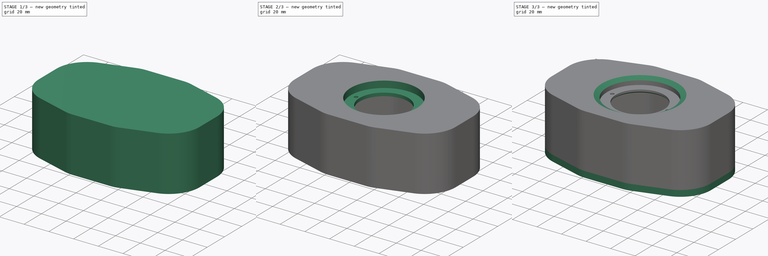
[diagram: build sequence overview — one tinted view per stage of 3, left to right]
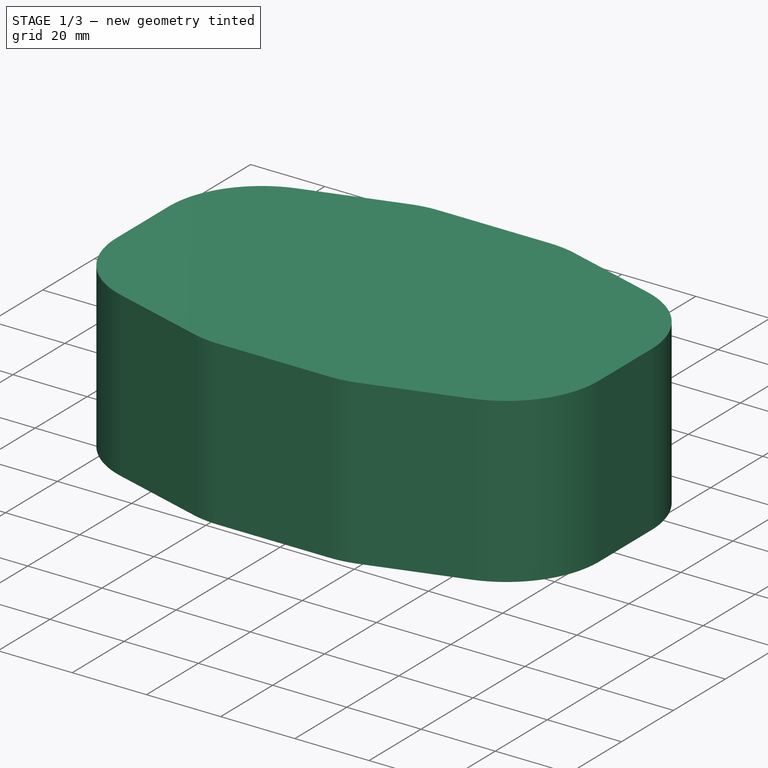
[diagram: stage 1 of 3 — iso view after this stage's code; geometry added in this stage tinted green]
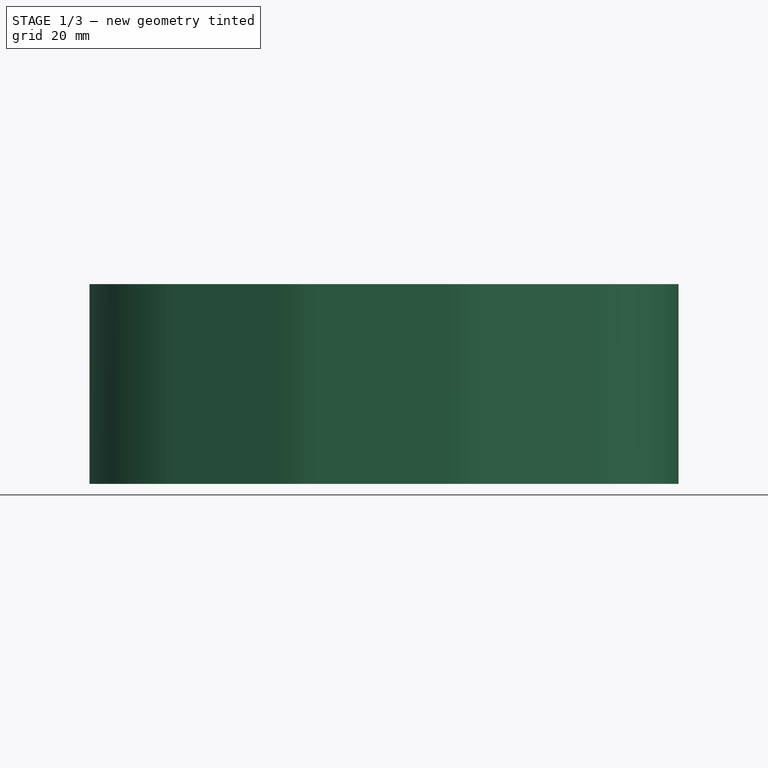
[diagram: stage 1 of 3 — front view after this stage's code; geometry added in this stage tinted green]
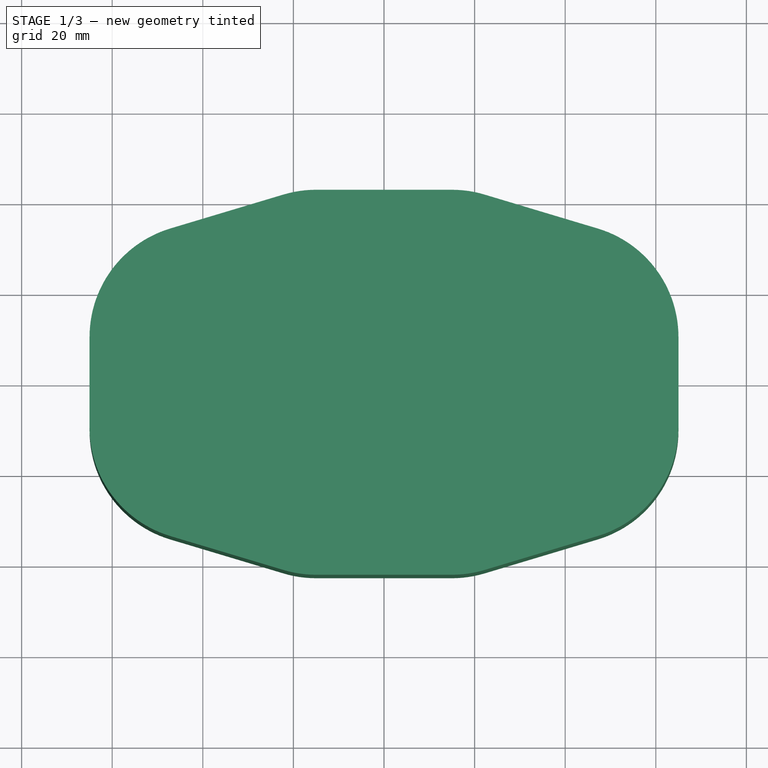
[diagram: stage 1 of 3 — top view after this stage's code; geometry added in this stage tinted green]
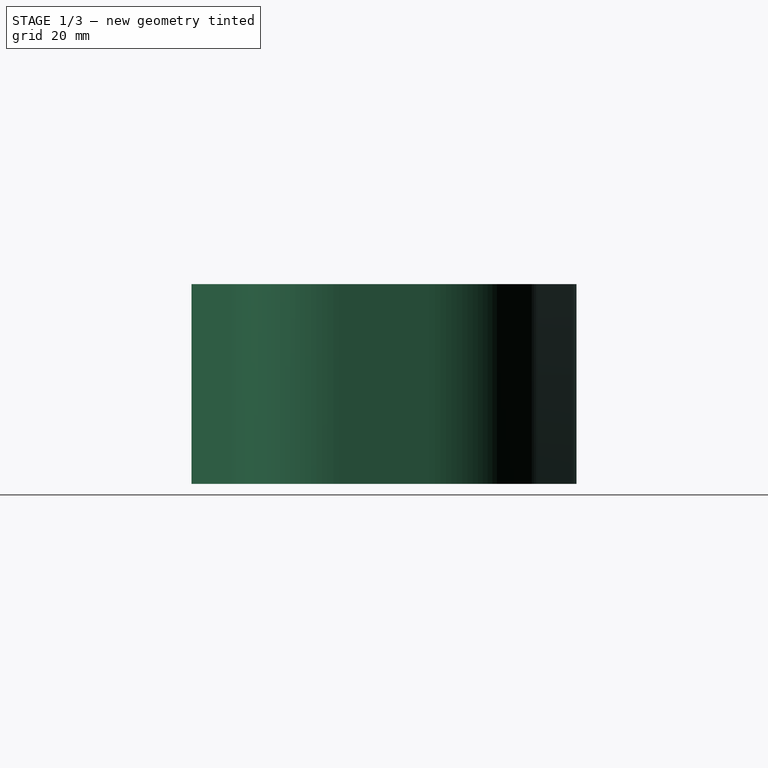
[diagram: stage 1 of 3 — right view after this stage's code; geometry added in this stage tinted green]
FCSTD DOCUMENT  (FreeCAD 1.1R20260325 (Git shallow))
Label: mule v8.0
License: All rights reserved
LicenseURL: http://en.wikipedia.org/wiki/All_rights_reserved
objects: Sketcher::SketchObject×11, PartDesign::Pad×4, App::VarSet×2, App::Point×2, PartDesign::Pocket×2, PartDesign::Body×2, PartDesign::Chamfer×2
note: 48 computed .brp shape members not serialized (recipe doc carries the construction recipe); baked Part::Feature solids carry a one-line shape summary decoded from their .brp

FEATURE [Sketcher::SketchObject] Sketch002  label="base geometry"
  ArcFitTolerance = 1e-06
  ExternalTypes = [0]
  FullyConstrained = true
  MakeInternals = false
  MapMode = 5
  _ExternalGeoVersion = 0
  expr: Constraints[3] = <<v>>.bmr_offset
  expr: Constraints[4] = <<v>>.woofer_offset
  expr: Constraints[5] = <<v>>.woofer_offset
  expr: Constraints[6] = <<v>>.ext_height / 2
  expr: Constraints[7] = <<v>>.ext_width / 2
  sketch-geometry (7):
    g0: GeomPoint [constr] X=-97.5 Y=247.5 Z=0
    g1: GeomPoint [constr] X=97.5 Y=247.5 Z=0
    g2: GeomPoint [constr] X=97.5 Y=-247.5 Z=0
    g3: GeomPoint [constr] X=-97.5 Y=-247.5 Z=0
    g4: GeomPoint [constr] X=0 Y=0 Z=0
    g5: GeomPoint [constr] X=0 Y=125 Z=0
    g6: GeomPoint [constr] X=0 Y=-125 Z=0
  constraints (11):
    c: PointOnObject(g4,g-1)
    c: PointOnObject(g5,g-2)
    c: PointOnObject(g6,g-2)
    c: DistanceX(g4,g-1) = 0
    c: DistanceY(g-1,g5) = 125
    c: DistanceY(g6,g-1) = 125
    c: DistanceY(g-1,g1) = 247.5
    c: DistanceX(g-1,g1) = 97.5
    c: Symmetric(g0,g1,g-2)
    c: Symmetric(g1,g2,g-1)
    c: Symmetric(g3,g2,g-2)
FEATURE [Sketcher::SketchObject] Sketch  label="back panel screw hole geometry"
  ArcFitTolerance = 1e-06
  AttachmentSupport = -> [Sketch002]
  ExternalTypes = [0]
  FullyConstrained = true
  MakeInternals = false
  MapMode = 2
  _ExternalGeoVersion = 0
  expr: Constraints[1] = <<v>>.ext_height / 2 - <<v>>.screw_inset
  expr: Constraints[2] = <<v>>.ext_width / 2 - <<v>>.screw_inset
  expr: Constraints[8] = <<v>>.ext_width / 2 - <<v>>.screw_inset
  expr: Constraints[9] = <<v>>.bmr_enc_base
  sketch-geometry (10):
    g0: GeomPoint [constr] X=-87.5 Y=237.5 Z=0
    g1: GeomPoint [constr] X=87.5 Y=237.5 Z=0
    g2: GeomPoint [constr] X=87.5 Y=-237.5 Z=0
    g3: GeomPoint [constr] X=-87.5 Y=-237.5 Z=0
    g4: GeomPoint [constr] X=-87.5 Y=-67.5 Z=0
    g5: GeomPoint [constr] X=-87.5 Y=67.5 Z=0
    g6: GeomPoint [constr] X=87.5 Y=67.5 Z=0
    g7: GeomPoint [constr] X=87.5 Y=-67.5 Z=0
    g8: GeomPoint [constr] X=62.5 Y=0 Z=0
    g9: GeomPoint [constr] X=-62.5 Y=0 Z=0
  constraints (13):
    c: PointOnObject(g8,g-1)
    c: DistanceY(g-1,g0) = 237.5
    c: DistanceX(g0,g-1) = 87.5
    c: Symmetric(g0,g1,g-2)
    c: Symmetric(g5,g6,g-2)
    c: Symmetric(g4,g7,g-2)
    c: Symmetric(g3,g2,g-2)
    c: Symmetric(g2,g1,g-1)
    c: DistanceX(g5,g-1) = 87.5
    c: DistanceY(g4,g5) = 135
    c: Symmetric(g5,g4,g-1)
    c: DistanceX(g-1,g8) = 62.5
    c: Symmetric(g9,g8,g-2)
FEATURE [Sketcher::SketchObject] Sketch015  label="interior baffle outline"
  ArcFitTolerance = 1e-06
  AttachmentOffset = pos=(0,0,5) rot=(0,0,1;0rad)
  AttachmentSupport = -> [Sketch]
  ExternalTypes = [0]
  FullyConstrained = true
  MakeInternals = false
  MapMode = 2
  Placement = pos=(0,0,5) rot=(0,0,1;0rad)
  _ExternalGeoVersion = 0
  expr: .AttachmentOffset.Base.z = <<v>>.ext_wall
  sketch-geometry (40):
    g0: LineSegment StartX=-45.747 StartY=29.1565 StartZ=0 EndX=-20.747 EndY=36.6565 EndZ=0
    g1: LineSegment StartX=-15 StartY=37.5 StartZ=0 EndX=15 EndY=37.5 EndZ=0
    g2: LineSegment StartX=20.747 StartY=36.6565 StartZ=0 EndX=45.747 EndY=29.1565 EndZ=0
    g3: LineSegment StartX=60 StartY=10 StartZ=0 EndX=60 EndY=-10 EndZ=0
    g4: LineSegment StartX=45.747 StartY=-29.1565 StartZ=0 EndX=20.747 EndY=-36.6565 EndZ=0
    g5: LineSegment StartX=15 StartY=-37.5 StartZ=0 EndX=-15 EndY=-37.5 EndZ=0
    g6: LineSegment StartX=-20.747 StartY=-36.6565 StartZ=0 EndX=-45.747 EndY=-29.1565 EndZ=0
    g7: LineSegment StartX=-60 StartY=-10 StartZ=0 EndX=-60 EndY=10 EndZ=0
    g8: ArcOfCircle CenterX=-15 CenterY=17.5 CenterZ=0 NormalX=0 NormalY=0 NormalZ=1 AngleXU=0 Radius=20 StartAngle=1.5708 EndAngle=1.86225
    g9: GeomPoint [constr] X=-17.9354 Y=37.5 Z=0
    g10: ArcOfCircle CenterX=15 CenterY=17.5 CenterZ=0 NormalX=0 NormalY=0 NormalZ=1 AngleXU=0 Radius=20 StartAngle=1.27934 EndAngle=1.5708
    g11: GeomPoint [constr] X=17.9354 Y=37.5 Z=0
    g12: ArcOfCircle CenterX=40 CenterY=10 CenterZ=0 NormalX=0 NormalY=0 NormalZ=1 AngleXU=0 Radius=20 StartAngle=0 EndAngle=1.27934
    g13: GeomPoint [constr] X=60 Y=24.8806 Z=0
    g14: ArcOfCircle CenterX=40 CenterY=-10 CenterZ=0 NormalX=0 NormalY=0 NormalZ=1 AngleXU=0 Radius=20 StartAngle=5.00385 EndAngle=6.28319
    g15: GeomPoint [constr] X=60 Y=-24.8806 Z=0
    g16: ArcOfCircle CenterX=15 CenterY=-17.5 CenterZ=0 NormalX=0 NormalY=0 NormalZ=1 AngleXU=0 Radius=20 StartAngle=4.71239 EndAngle=5.00385
    g17: GeomPoint [constr] X=17.9354 Y=-37.5 Z=0
    g18: ArcOfCircle CenterX=-15 CenterY=-17.5 CenterZ=0 NormalX=0 NormalY=0 NormalZ=1 AngleXU=0 Radius=20 StartAngle=4.42093 EndAngle=4.71239
    g19: GeomPoint [constr] X=-17.9354 Y=-37.5 Z=0
    g20: ArcOfCircle CenterX=-40 CenterY=-10 CenterZ=0 NormalX=0 NormalY=0 NormalZ=1 AngleXU=0 Radius=20 StartAngle=3.14159 EndAngle=4.42093
    g21: GeomPoint [constr] X=-60 Y=-24.8806 Z=0
    g22: ArcOfCircle CenterX=-40 CenterY=10 CenterZ=0 NormalX=0 NormalY=0 NormalZ=1 AngleXU=0 Radius=20 StartAngle=1.86225 EndAngle=3.14159
    g23: GeomPoint [constr] X=-60 Y=24.8806 Z=0
    g24: ArcOfCircle CenterX=-40 CenterY=10 CenterZ=0 NormalX=0 NormalY=0 NormalZ=1 AngleXU=0 Radius=25 StartAngle=1.86225 EndAngle=3.14159
    g25: LineSegment StartX=-65 StartY=-10 StartZ=0 EndX=-65 EndY=10 EndZ=0
    g26: ArcOfCircle CenterX=-40 CenterY=-10 CenterZ=0 NormalX=0 NormalY=0 NormalZ=1 AngleXU=0 Radius=25 StartAngle=3.14159 EndAngle=4.42093
    g27: LineSegment StartX=-22.1837 StartY=-41.4457 StartZ=0 EndX=-47.1837 EndY=-33.9457 EndZ=0
    g28: ArcOfCircle CenterX=-15 CenterY=-17.5 CenterZ=0 NormalX=0 NormalY=0 NormalZ=1 AngleXU=0 Radius=25 StartAngle=4.42093 EndAngle=4.71239
    g29: LineSegment StartX=15 StartY=-42.5 StartZ=0 EndX=-15 EndY=-42.5 EndZ=0
    g30: ArcOfCircle CenterX=15 CenterY=-17.5 CenterZ=0 NormalX=0 NormalY=0 NormalZ=1 AngleXU=0 Radius=25 StartAngle=4.71239 EndAngle=5.00385
    g31: LineSegment StartX=47.1837 StartY=-33.9457 StartZ=0 EndX=22.1837 EndY=-41.4457 EndZ=0
    g32: ArcOfCircle CenterX=40 CenterY=-10 CenterZ=0 NormalX=0 NormalY=0 NormalZ=1 AngleXU=0 Radius=25 StartAngle=5.00385 EndAngle=6.28319
    g33: LineSegment StartX=65 StartY=10 StartZ=0 EndX=65 EndY=-10 EndZ=0
    g34: ArcOfCircle CenterX=40 CenterY=10 CenterZ=0 NormalX=0 NormalY=0 NormalZ=1 AngleXU=0 Radius=25 StartAngle=0 EndAngle=1.27934
    g35: LineSegment StartX=22.1837 StartY=41.4457 StartZ=0 EndX=47.1837 EndY=33.9457 EndZ=0
    g36: ArcOfCircle CenterX=15 CenterY=17.5 CenterZ=0 NormalX=0 NormalY=0 NormalZ=1 AngleXU=0 Radius=25 StartAngle=1.27934 EndAngle=1.5708
    g37: LineSegment StartX=-15 StartY=42.5 StartZ=0 EndX=15 EndY=42.5 EndZ=0
    g38: ArcOfCircle CenterX=-15 CenterY=17.5 CenterZ=0 NormalX=0 NormalY=0 NormalZ=1 AngleXU=0 Radius=25 StartAngle=1.5708 EndAngle=1.86225
    g39: LineSegment StartX=-47.1837 StartY=33.9457 StartZ=0 EndX=-22.1837 EndY=41.4457 EndZ=0
  constraints (92):
    c: Horizontal(g1)
    c: Vertical(g7)
    c: Parallel(g2,g6)
    c: Parallel(g4,g0)
    c: Symmetric(g11,g17,g-1)
    c: Symmetric(g9,g19,g-1)
    c: Symmetric(g15,g13,g-1)
    c: Symmetric(g23,g13,g-2)
    c: PointOnObject(g9,g0)
    c: PointOnObject(g9,g1)
    c: Tangent(g0,g8) = 1.5708
    c: Tangent(g1,g8) = 1.5708
    c: PointOnObject(g11,g1)
    c: PointOnObject(g11,g2)
    c: Tangent(g1,g10) = 1.5708
    c: Tangent(g2,g10) = 1.5708
    c: PointOnObject(g13,g2)
    c: PointOnObject(g13,g3)
    c: Tangent(g2,g12) = 1.5708
    c: Tangent(g3,g12) = 1.5708
    c: PointOnObject(g15,g3)
    c: PointOnObject(g15,g4)
    c: Tangent(g3,g14) = 1.5708
    c: Tangent(g4,g14) = 1.5708
    c: PointOnObject(g17,g4)
    c: PointOnObject(g17,g5)
    c: Tangent(g4,g16) = 1.5708
    c: Tangent(g5,g16) = 1.5708
    c: PointOnObject(g19,g5)
    c: PointOnObject(g19,g6)
    c: Tangent(g5,g18) = 1.5708
    c: Tangent(g6,g18) = 1.5708
    c: PointOnObject(g21,g6)
    c: PointOnObject(g21,g7)
    c: Tangent(g6,g20) = 1.5708
    c: Tangent(g7,g20) = 1.5708
    c: PointOnObject(g23,g0)
    c: PointOnObject(g23,g7)
    c: Tangent(g0,g22) = 1.5708
    c: Tangent(g7,g22) = 1.5708
    c: Radius(g8) = 20
    c: Equal(g8,g22)
    c: Equal(g20,g22)
    c: Equal(g18,g12)
    c: Equal(g12,g14)
    c: Equal(g8,g10)
    c: Equal(g12,g10)
    c: Tangent(g24,g25) = 1.5708
    c: Tangent(g24,g39) = 1.5708
    c: Tangent(g25,g26) = 1.5708
    c: Tangent(g26,g27) = 1.5708
    c: Tangent(g27,g28) = 1.5708
    c: Tangent(g28,g29) = 1.5708
    c: Tangent(g29,g30) = 1.5708
    c: Tangent(g30,g31) = 1.5708
    c: Tangent(g31,g32) = 1.5708
    c: Tangent(g32,g33) = 1.5708
    c: Tangent(g33,g34) = 1.5708
    c: Tangent(g34,g35) = 1.5708
    c: Tangent(g35,g36) = 1.5708
    c: Tangent(g36,g37) = 1.5708
    c: Tangent(g37,g38) = 1.5708
    c: Tangent(g38,g39) = 1.5708
    c: Distance(g7,g3) = 120
    c: Distance(g5,g1) = 75
    c: Parallel(g37,g1)
    c: Parallel(g5,g29)
    c: Parallel(g25,g7)
    c: Parallel(g3,g33)
    c: Radius(g38) = 25
    c: Equal(g38,g24)
    c: Equal(g24,g26)
    c: Equal(g26,g28)
    c: Equal(g28,g30)
    c: Equal(g30,g32)
    c: Equal(g32,g34)
    c: Equal(g34,g36)
    c: Equal(g14,g16)
    c: Distance(g1,g37) = 5
    c: Distance(g29,g5) = 5
    c: Distance(g7,g25) = 5
    c: Distance(g33,g3) = 5
    c: Parallel(g27,g6)
    c: Parallel(g0,g39)
    c: Parallel(g35,g2)
    c: Parallel(g31,g4)
    c: Distance(g2,g35) = 5
    c: Distance(g31,g4) = 5
    c: Distance(g39,g0) = 5
    c: Distance(g6,g27) = 5
    c: DistanceY(g7,g7) = 20
    c: DistanceX(g1,g1) = 30
FEATURE [App::VarSet] VarSet001  label="v"
  backplate_height = 489.8
  backplate_rebate = 5.9
  backplate_thickness = 5
  backplate_width = 189.8
  bmr_chamfer_depth = 1.5
  bmr_chamfer_width = 6
  bmr_enc_base = 135
  bmr_enc_offset = 35
  bmr_enc_top = 50
  bmr_hole_dia = 39.5
  bmr_offset = 0
  bmr_plate_thickness = 3
  bmr_rebate_depth = 5.4
  bmr_rebate_dia = 54
  bmr_support_dia = 70
  bmr_support_thickness = 3
  ext_depth = 50
  ext_height = 495
  ext_roundover = 10
  ext_wall = 5
  ext_width = 195
  gasket_thickness = 0.9
  int_depth = 39.1
  rim_width = 2.5
  screw_inset = 10
  screw_post_diameter = 10
  woofer_chamfer_depth = 1
  woofer_chamfer_width = 8
  woofer_cutout_dia = 130
  woofer_offset = 125
  woofer_plate_thickness = 5.3
  woofer_rebate_depth = 7.2
  woofer_rebate_dia = 152.5
  woofer_support_dia = 165
  woofer_support_thickness = 6
  expr: backplate_height = ext_height - rim_width * 2 - 0.2 mm
  expr: backplate_rebate = ext_wall + gasket_thickness
  expr: backplate_width = ext_width - rim_width * 2 - 0.2 mm
  expr: bmr_rebate_depth = bmr_plate_thickness + bmr_chamfer_depth + gasket_thickness
  expr: int_depth = ext_depth - ext_wall - backplate_rebate
  expr: woofer_rebate_depth = woofer_plate_thickness + gasket_thickness + woofer_chamfer_depth
FEATURE [Sketcher::SketchObject] Sketch016  label="interior baffle outline001"
  ArcFitTolerance = 1e-06
  AttachmentSupport = -> [Sketch]
  ExternalTypes = [0]
  FullyConstrained = false
  MakeInternals = false
  MapMode = 2
  _ExternalGeoVersion = 0
  sketch-geometry (20):
    g0: GeomPoint [constr] X=60 Y=24.8806 Z=0
    g1: GeomPoint [constr] X=60 Y=-24.8806 Z=0
    g2: GeomPoint [constr] X=-60 Y=-24.8806 Z=0
    g3: GeomPoint [constr] X=-60 Y=24.8806 Z=0
    g4: ArcOfCircle CenterX=-40 CenterY=10 CenterZ=0 NormalX=0 NormalY=0 NormalZ=1 AngleXU=0 Radius=25 StartAngle=1.86225 EndAngle=3.14159
    g5: LineSegment StartX=-65 StartY=-10 StartZ=0 EndX=-65 EndY=10 EndZ=0
    g6: ArcOfCircle CenterX=-40 CenterY=-10 CenterZ=0 NormalX=0 NormalY=0 NormalZ=1 AngleXU=0 Radius=25 StartAngle=3.14159 EndAngle=4.42093
    g7: LineSegment StartX=-22.1837 StartY=-41.4457 StartZ=0 EndX=-47.1837 EndY=-33.9457 EndZ=0
    g8: ArcOfCircle CenterX=-15 CenterY=-17.5 CenterZ=0 NormalX=0 NormalY=0 NormalZ=1 AngleXU=0 Radius=25 StartAngle=4.42093 EndAngle=4.71239
    g9: LineSegment StartX=15 StartY=-42.5 StartZ=0 EndX=-15 EndY=-42.5 EndZ=0
    g10: ArcOfCircle CenterX=15 CenterY=-17.5 CenterZ=0 NormalX=0 NormalY=0 NormalZ=1 AngleXU=0 Radius=25 StartAngle=4.71239 EndAngle=5.00385
    g11: LineSegment StartX=47.1837 StartY=-33.9457 StartZ=0 EndX=22.1837 EndY=-41.4457 EndZ=0
    g12: ArcOfCircle CenterX=40 CenterY=-10 CenterZ=0 NormalX=0 NormalY=0 NormalZ=1 AngleXU=0 Radius=25 StartAngle=5.00385 EndAngle=6.28319
    g13: LineSegment StartX=65 StartY=10 StartZ=0 EndX=65 EndY=-10 EndZ=0
    g14: ArcOfCircle CenterX=40 CenterY=10 CenterZ=0 NormalX=0 NormalY=0 NormalZ=1 AngleXU=0 Radius=25 StartAngle=0 EndAngle=1.27934
    g15: LineSegment StartX=22.1837 StartY=41.4457 StartZ=0 EndX=47.1837 EndY=33.9457 EndZ=0
    g16: ArcOfCircle CenterX=15 CenterY=17.5 CenterZ=0 NormalX=0 NormalY=0 NormalZ=1 AngleXU=0 Radius=25 StartAngle=1.27934 EndAngle=1.5708
    g17: LineSegment StartX=-15 StartY=42.5 StartZ=0 EndX=15 EndY=42.5 EndZ=0
    g18: ArcOfCircle CenterX=-15 CenterY=17.5 CenterZ=0 NormalX=0 NormalY=0 NormalZ=1 AngleXU=0 Radius=25 StartAngle=1.5708 EndAngle=1.86225
    g19: LineSegment StartX=-47.1837 StartY=33.9457 StartZ=0 EndX=-22.1837 EndY=41.4457 EndZ=0
  constraints (26):
    c: Symmetric(g1,g0,g-1)
    c: Symmetric(g3,g0,g-2)
    c: Tangent(g4,g5) = 1.5708
    c: Tangent(g4,g19) = 1.5708
    c: Tangent(g5,g6) = 1.5708
    c: Tangent(g6,g7) = 1.5708
    c: Tangent(g7,g8) = 1.5708
    c: Tangent(g8,g9) = 1.5708
    c: Tangent(g9,g10) = 1.5708
    c: Tangent(g10,g11) = 1.5708
    c: Tangent(g11,g12) = 1.5708
    c: Tangent(g12,g13) = 1.5708
    c: Tangent(g13,g14) = 1.5708
    c: Tangent(g14,g15) = 1.5708
    c: Tangent(g15,g16) = 1.5708
    c: Tangent(g16,g17) = 1.5708
    c: Tangent(g17,g18) = 1.5708
    c: Tangent(g18,g19) = 1.5708
    c: Radius(g18) = 25
    c: Equal(g18,g4)
    c: Equal(g4,g6)
    c: Equal(g6,g8)
    c: Equal(g8,g10)
    c: Equal(g10,g12)
    c: Equal(g12,g14)
    c: Equal(g14,g16)
FEATURE [App::Point] Origin001
  Role = Origin
FEATURE [Sketcher::SketchObject] Sketch017  label="interior baffle outline002"
  ArcFitTolerance = 1e-06
  AttachmentOffset = pos=(0,0,44.1) rot=(0,0,1;0rad)
  AttachmentSupport = -> [Sketch]
  ExternalTypes = [0]
  FullyConstrained = false
  MakeInternals = false
  MapMode = 2
  Placement = pos=(0,0,44.1) rot=(0,0,1;0rad)
  _ExternalGeoVersion = 0
  expr: .AttachmentOffset.Base.z = <<v>>.ext_wall + <<v>>.int_depth
  sketch-geometry (20):
    g0: GeomPoint [constr] X=60 Y=24.8806 Z=0
    g1: GeomPoint [constr] X=60 Y=-24.8806 Z=0
    g2: GeomPoint [constr] X=-60 Y=-24.8806 Z=0
    g3: GeomPoint [constr] X=-60 Y=24.8806 Z=0
    g4: ArcOfCircle CenterX=-40 CenterY=10 CenterZ=0 NormalX=0 NormalY=0 NormalZ=1 AngleXU=0 Radius=25 StartAngle=1.86225 EndAngle=3.14159
    g5: LineSegment StartX=-65 StartY=-10 StartZ=0 EndX=-65 EndY=10 EndZ=0
    g6: ArcOfCircle CenterX=-40 CenterY=-10 CenterZ=0 NormalX=0 NormalY=0 NormalZ=1 AngleXU=0 Radius=25 StartAngle=3.14159 EndAngle=4.42093
    g7: LineSegment StartX=-22.1837 StartY=-41.4457 StartZ=0 EndX=-47.1837 EndY=-33.9457 EndZ=0
    g8: ArcOfCircle CenterX=-15 CenterY=-17.5 CenterZ=0 NormalX=0 NormalY=0 NormalZ=1 AngleXU=0 Radius=25 StartAngle=4.42093 EndAngle=4.71239
    g9: LineSegment StartX=15 StartY=-42.5 StartZ=0 EndX=-15 EndY=-42.5 EndZ=0
    g10: ArcOfCircle CenterX=15 CenterY=-17.5 CenterZ=0 NormalX=0 NormalY=0 NormalZ=1 AngleXU=0 Radius=25 StartAngle=4.71239 EndAngle=5.00385
    g11: LineSegment StartX=47.1837 StartY=-33.9457 StartZ=0 EndX=22.1837 EndY=-41.4457 EndZ=0
    g12: ArcOfCircle CenterX=40 CenterY=-10 CenterZ=0 NormalX=0 NormalY=0 NormalZ=1 AngleXU=0 Radius=25 StartAngle=5.00385 EndAngle=6.28319
    g13: LineSegment StartX=65 StartY=10 StartZ=0 EndX=65 EndY=-10 EndZ=0
    g14: ArcOfCircle CenterX=40 CenterY=10 CenterZ=0 NormalX=0 NormalY=0 NormalZ=1 AngleXU=0 Radius=25 StartAngle=0 EndAngle=1.27934
    g15: LineSegment StartX=22.1837 StartY=41.4457 StartZ=0 EndX=47.1837 EndY=33.9457 EndZ=0
    g16: ArcOfCircle CenterX=15 CenterY=17.5 CenterZ=0 NormalX=0 NormalY=0 NormalZ=1 AngleXU=0 Radius=25 StartAngle=1.27934 EndAngle=1.5708
    g17: LineSegment StartX=-15 StartY=42.5 StartZ=0 EndX=15 EndY=42.5 EndZ=0
    g18: ArcOfCircle CenterX=-15 CenterY=17.5 CenterZ=0 NormalX=0 NormalY=0 NormalZ=1 AngleXU=0 Radius=25 StartAngle=1.5708 EndAngle=1.86225
    g19: LineSegment StartX=-47.1837 StartY=33.9457 StartZ=0 EndX=-22.1837 EndY=41.4457 EndZ=0
  constraints (26):
    c: Symmetric(g1,g0,g-1)
    c: Symmetric(g3,g0,g-2)
    c: Tangent(g4,g5) = 1.5708
    c: Tangent(g4,g19) = 1.5708
    c: Tangent(g5,g6) = 1.5708
    c: Tangent(g6,g7) = 1.5708
    c: Tangent(g7,g8) = 1.5708
    c: Tangent(g8,g9) = 1.5708
    c: Tangent(g9,g10) = 1.5708
    c: Tangent(g10,g11) = 1.5708
    c: Tangent(g11,g12) = 1.5708
    c: Tangent(g12,g13) = 1.5708
    c: Tangent(g13,g14) = 1.5708
    c: Tangent(g14,g15) = 1.5708
    c: Tangent(g15,g16) = 1.5708
    c: Tangent(g16,g17) = 1.5708
    c: Tangent(g17,g18) = 1.5708
    c: Tangent(g18,g19) = 1.5708
    c: Radius(g18) = 25
    c: Equal(g18,g4)
    c: Equal(g4,g6)
    c: Equal(g6,g8)
    c: Equal(g8,g10)
    c: Equal(g10,g12)
    c: Equal(g12,g14)
    c: Equal(g14,g16)
FEATURE [PartDesign::Pad] Pad002  label="face"
  Direction = (0,0,1)
  Length = 5
  Length2 = 10
  Profile = -> Sketch017
  ReferenceAxis = -> Sketch017 [N_Axis]
  SideType = 0
  Suppressed = false
  Type = 0
  Type2 = 0
  expr: Length = <<v>>.ext_wall
FEATURE [Sketcher::SketchObject] Sketch018
  ArcFitTolerance = 1e-06
  AttachmentSupport = -> [Pad002]
  ExternalTypes = [0]
  FullyConstrained = true
  MakeInternals = false
  MapMode = 5
  Placement = pos=(0,0,49.1) rot=(0,0,1;0rad)
  _ExternalGeoVersion = 1
  expr: Constraints[1] = <<v>>.bmr_rebate_dia
  sketch-geometry (1):
    g0: Circle CenterX=0 CenterY=0 CenterZ=0 NormalX=0 NormalY=0 NormalZ=1 AngleXU=0 Radius=27
  constraints (2):
    c: Coincident(g0,g-1)
    c: Diameter(g0) = 54
FEATURE [Sketcher::SketchObject] Sketch019
  ArcFitTolerance = 1e-06
  AttachmentSupport = -> [Pad002]
  ExternalTypes = [0]
  FullyConstrained = true
  MakeInternals = false
  MapMode = 5
  Placement = pos=(0,0,44.1) rot=(1,0,0;3.14159rad)
  _ExternalGeoVersion = 1
  expr: Constraints[1] = <<v>>.bmr_support_dia
  sketch-geometry (1):
    g0: Circle CenterX=0 CenterY=0 CenterZ=0 NormalX=0 NormalY=0 NormalZ=1 AngleXU=0 Radius=35
  constraints (2):
    c: Coincident(g0,g-1)
    c: Diameter(g0) = 70
FEATURE [PartDesign::Pad] Pad003  label="support"
  BaseFeature = -> Pad002
  Direction = (0,0,-1)
  Length = 3
  Length2 = 10
  Profile = -> Sketch019
  ReferenceAxis = -> Sketch019 [N_Axis]
  SideType = 0
  Suppressed = false
  Type = 0
  Type2 = 0
  expr: Length = <<v>>.bmr_support_thickness
FEATURE [PartDesign::Pad] Pad001  label="wall"
  BaseFeature = -> Pad003
  Direction = (0,0,1)
  Length = 39.1
  Length2 = 10
  Profile = -> Sketch015
  ReferenceAxis = -> Sketch015 [N_Axis]
  SideType = 0
  Suppressed = false
  Type = 0
  Type2 = 0
  expr: Length = <<v>>.int_depth
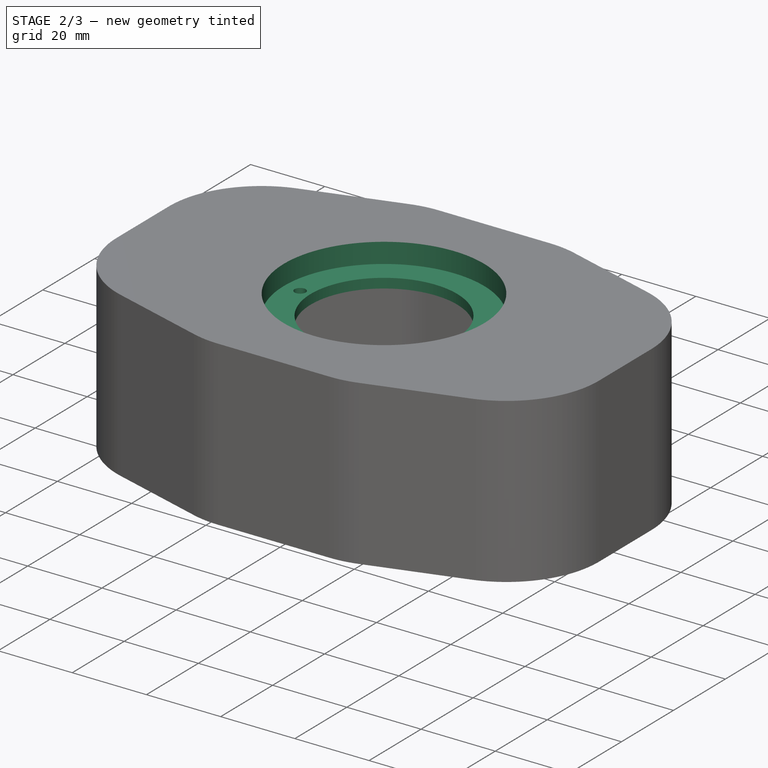
[diagram: stage 2 of 3 — iso view after this stage's code; geometry added in this stage tinted green]
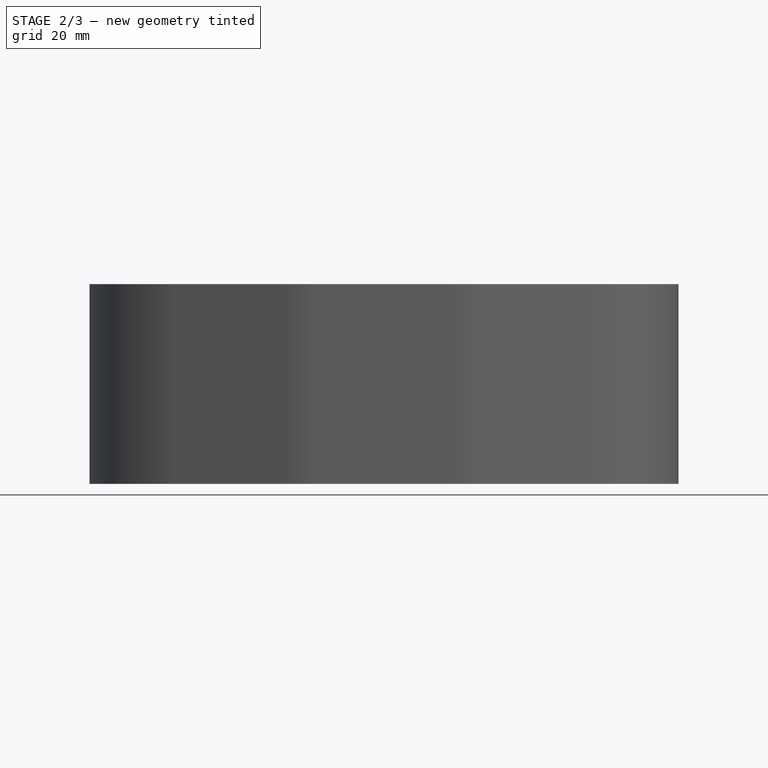
[diagram: stage 2 of 3 — front view after this stage's code; geometry added in this stage tinted green]
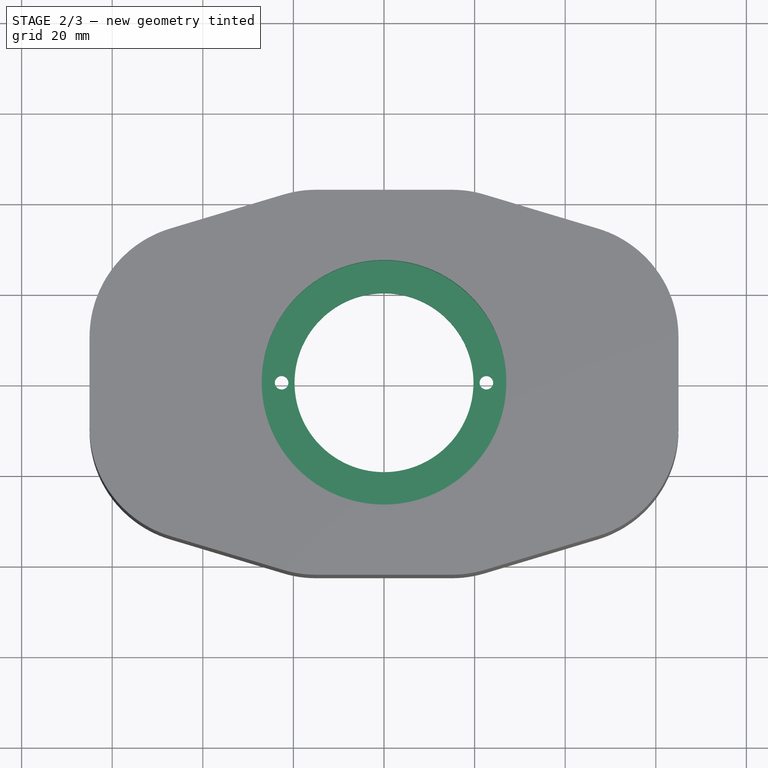
[diagram: stage 2 of 3 — top view after this stage's code; geometry added in this stage tinted green]
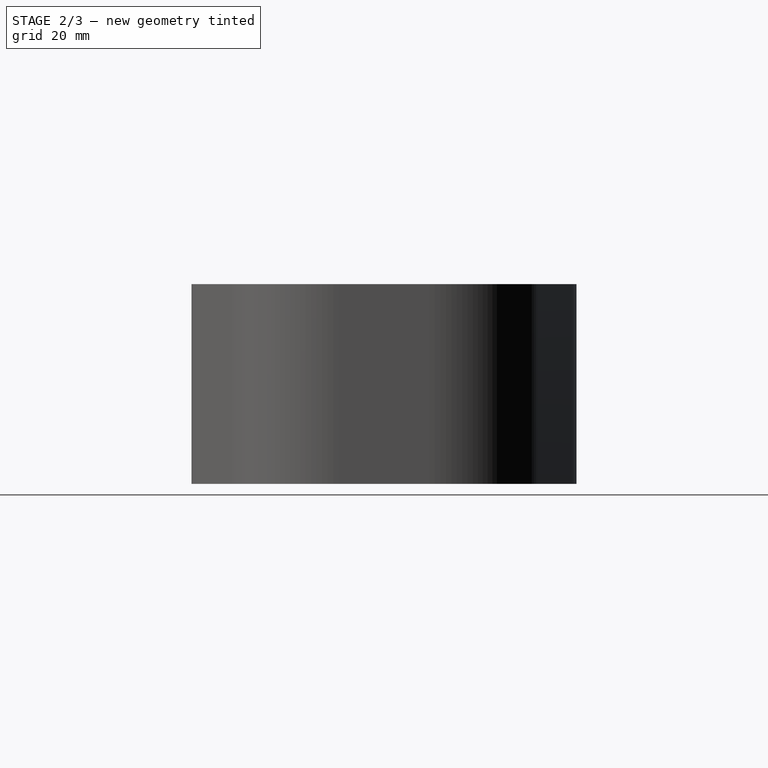
[diagram: stage 2 of 3 — right view after this stage's code; geometry added in this stage tinted green]
FEATURE [PartDesign::Pocket] Pocket  label="rebate"
  BaseFeature = -> Pad001
  Direction = (0,0,-1)
  Length = 5.4
  Length2 = 5
  Profile = -> Sketch018
  ReferenceAxis = -> Sketch018 [N_Axis]
  SideType = 0
  Suppressed = false
  Type = 0
  Type2 = 0
  expr: Length = <<v>>.bmr_rebate_depth
FEATURE [Sketcher::SketchObject] Sketch020
  ArcFitTolerance = 1e-06
  AttachmentSupport = -> [Pocket]
  ExternalTypes = [0]
  FullyConstrained = true
  MakeInternals = false
  MapMode = 5
  Placement = pos=(0,0,43.7) rot=(0,0,1;0rad)
  _ExternalGeoVersion = 1
  expr: Constraints[1] = <<v>>.bmr_hole_dia
  sketch-geometry (3):
    g0: Circle CenterX=0 CenterY=0 CenterZ=0 NormalX=0 NormalY=0 NormalZ=1 AngleXU=0 Radius=19.75
    g1: Circle CenterX=-22.6 CenterY=0 CenterZ=0 NormalX=0 NormalY=0 NormalZ=1 AngleXU=0 Radius=1.5
    g2: Circle CenterX=22.6 CenterY=0 CenterZ=0 NormalX=0 NormalY=0 NormalZ=1 AngleXU=0 Radius=1.5
  constraints (7):
    c: Coincident(g0,g-1)
    c: Diameter(g0) = 39.5
    c: PointOnObject(g1,g-1)
    c: Equal(g1,g2)
    c: Diameter(g1) = 3
    c: DistanceX(g1,g2) = 45.2
    c: Symmetric(g1,g2,g-2)
FEATURE [PartDesign::Pocket] Pocket001  label="hole & screws"
  BaseFeature = -> Pocket
  Direction = (0,0,-1)
  Length = 10
  Length2 = 5
  Profile = -> Sketch020
  ReferenceAxis = -> Sketch020 [N_Axis]
  SideType = 0
  Suppressed = false
  Type = 0
  Type2 = 0
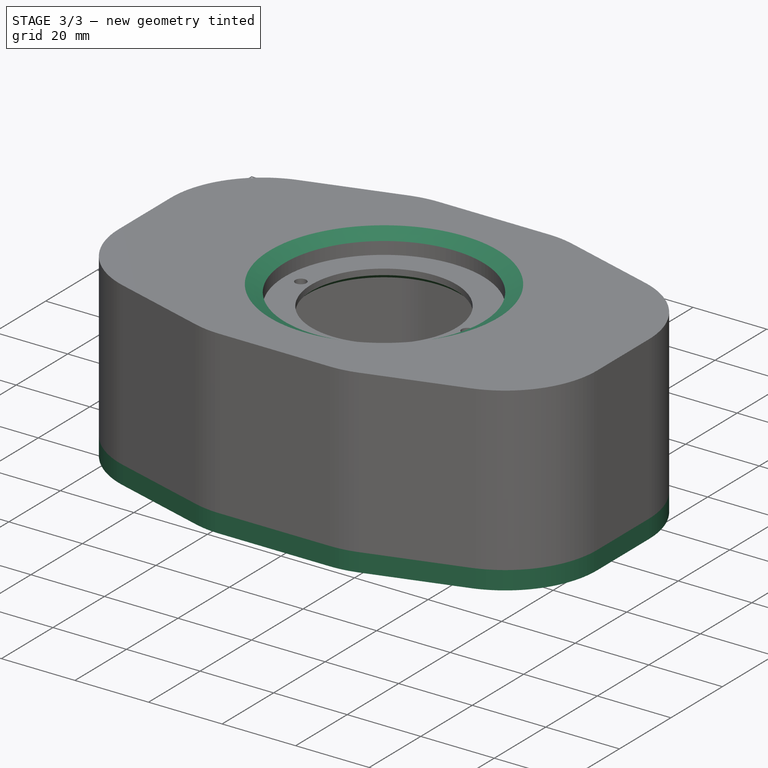
[diagram: stage 3 of 3 — iso view after this stage's code; geometry added in this stage tinted green]
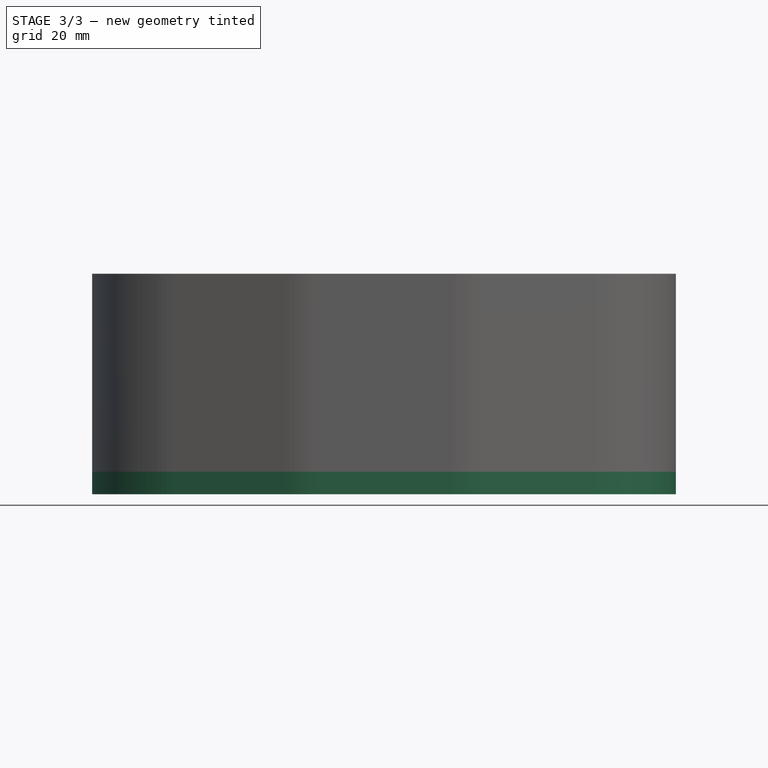
[diagram: stage 3 of 3 — front view after this stage's code; geometry added in this stage tinted green]
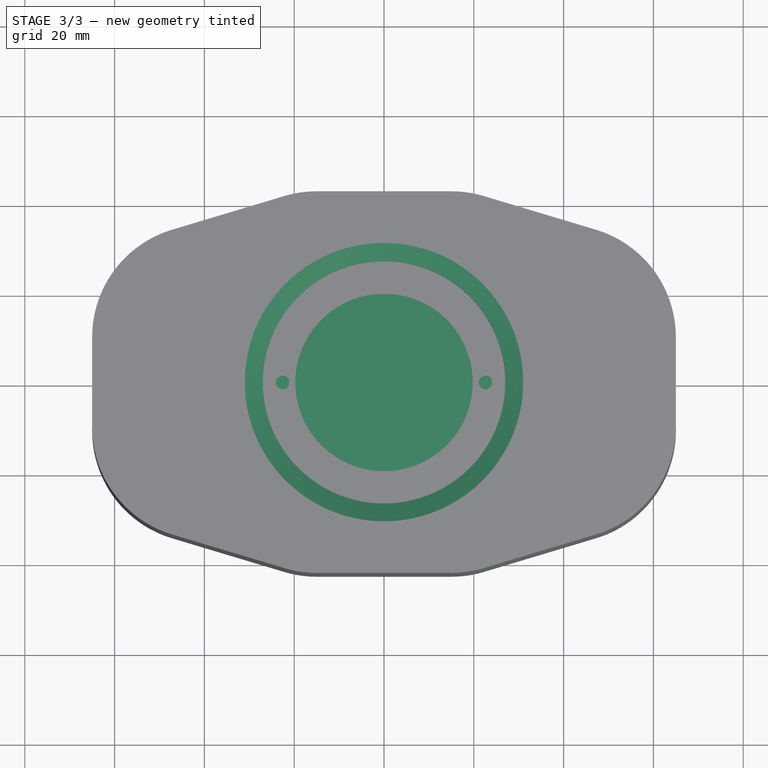
[diagram: stage 3 of 3 — top view after this stage's code; geometry added in this stage tinted green]
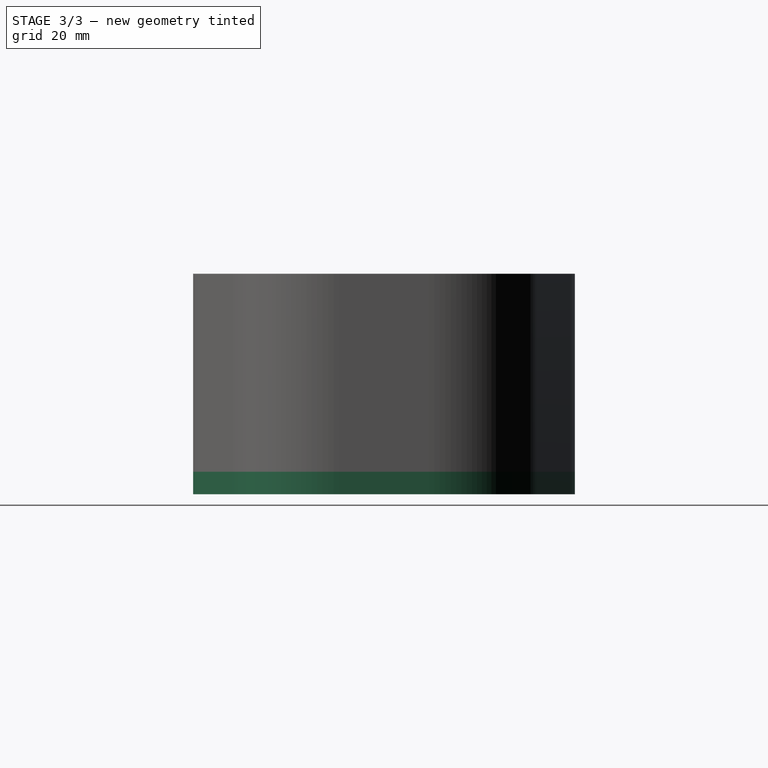
[diagram: stage 3 of 3 — right view after this stage's code; geometry added in this stage tinted green]
FEATURE [App::Point] Origin003
  Role = Origin
FEATURE [Sketcher::SketchObject] Sketch022  label="base geometry001"
  ArcFitTolerance = 1e-06
  ExternalTypes = [0]
  FullyConstrained = true
  MakeInternals = false
  MapMode = 5
  _ExternalGeoVersion = 0
  expr: Constraints[3] = <<v001>>.bmr_offset
  expr: Constraints[4] = <<v001>>.woofer_offset
  expr: Constraints[5] = <<v001>>.woofer_offset
  expr: Constraints[6] = <<v001>>.ext_height / 2
  expr: Constraints[7] = <<v001>>.ext_width / 2
  sketch-geometry (7):
    g0: GeomPoint [constr] X=-97.5 Y=247.5 Z=0
    g1: GeomPoint [constr] X=97.5 Y=247.5 Z=0
    g2: GeomPoint [constr] X=97.5 Y=-247.5 Z=0
    g3: GeomPoint [constr] X=-97.5 Y=-247.5 Z=0
    g4: GeomPoint [constr] X=0 Y=0 Z=0
    g5: GeomPoint [constr] X=0 Y=125 Z=0
    g6: GeomPoint [constr] X=0 Y=-125 Z=0
  constraints (11):
    c: PointOnObject(g4,g-1)
    c: PointOnObject(g5,g-2)
    c: PointOnObject(g6,g-2)
    c: DistanceX(g4,g-1) = 0
    c: DistanceY(g-1,g5) = 125
    c: DistanceY(g6,g-1) = 125
    c: DistanceY(g-1,g1) = 247.5
    c: DistanceX(g-1,g1) = 97.5
    c: Symmetric(g0,g1,g-2)
    c: Symmetric(g1,g2,g-1)
    c: Symmetric(g3,g2,g-2)
FEATURE [Sketcher::SketchObject] Sketch021  label="back panel screw hole geometry001"
  ArcFitTolerance = 1e-06
  AttachmentSupport = -> [Sketch022]
  ExternalTypes = [0]
  FullyConstrained = true
  MakeInternals = false
  MapMode = 2
  _ExternalGeoVersion = 0
  expr: Constraints[1] = <<v001>>.ext_height / 2 - <<v001>>.screw_inset
  expr: Constraints[2] = <<v001>>.ext_width / 2 - <<v001>>.screw_inset
  expr: Constraints[8] = <<v001>>.ext_width / 2 - <<v001>>.screw_inset
  expr: Constraints[9] = <<v001>>.bmr_enc_base
  sketch-geometry (10):
    g0: GeomPoint [constr] X=-87.5 Y=237.5 Z=0
    g1: GeomPoint [constr] X=87.5 Y=237.5 Z=0
    g2: GeomPoint [constr] X=87.5 Y=-237.5 Z=0
    g3: GeomPoint [constr] X=-87.5 Y=-237.5 Z=0
    g4: GeomPoint [constr] X=-87.5 Y=-67.5 Z=0
    g5: GeomPoint [constr] X=-87.5 Y=67.5 Z=0
    g6: GeomPoint [constr] X=87.5 Y=67.5 Z=0
    g7: GeomPoint [constr] X=87.5 Y=-67.5 Z=0
    g8: GeomPoint [constr] X=62.5 Y=0 Z=0
    g9: GeomPoint [constr] X=-62.5 Y=0 Z=0
  constraints (13):
    c: PointOnObject(g8,g-1)
    c: DistanceY(g-1,g0) = 237.5
    c: DistanceX(g0,g-1) = 87.5
    c: Symmetric(g0,g1,g-2)
    c: Symmetric(g5,g6,g-2)
    c: Symmetric(g4,g7,g-2)
    c: Symmetric(g3,g2,g-2)
    c: Symmetric(g2,g1,g-1)
    c: DistanceX(g5,g-1) = 87.5
    c: DistanceY(g4,g5) = 135
    c: Symmetric(g5,g4,g-1)
    c: DistanceX(g-1,g8) = 62.5
    c: Symmetric(g9,g8,g-2)
FEATURE [Sketcher::SketchObject] Sketch023  label="interior baffle outline003"
  ArcFitTolerance = 1e-06
  AttachmentSupport = -> [Sketch021]
  ExternalTypes = [0]
  FullyConstrained = false
  MakeInternals = false
  MapMode = 2
  _ExternalGeoVersion = 0
  sketch-geometry (20):
    g0: GeomPoint [constr] X=60 Y=24.8806 Z=0
    g1: GeomPoint [constr] X=60 Y=-24.8806 Z=0
    g2: GeomPoint [constr] X=-60 Y=-24.8806 Z=0
    g3: GeomPoint [constr] X=-60 Y=24.8806 Z=0
    g4: ArcOfCircle CenterX=-40 CenterY=10 CenterZ=0 NormalX=0 NormalY=0 NormalZ=1 AngleXU=0 Radius=25 StartAngle=1.86225 EndAngle=3.14159
    g5: LineSegment StartX=-65 StartY=-10 StartZ=0 EndX=-65 EndY=10 EndZ=0
    g6: ArcOfCircle CenterX=-40 CenterY=-10 CenterZ=0 NormalX=0 NormalY=0 NormalZ=1 AngleXU=0 Radius=25 StartAngle=3.14159 EndAngle=4.42093
    g7: LineSegment StartX=-22.1837 StartY=-41.4457 StartZ=0 EndX=-47.1837 EndY=-33.9457 EndZ=0
    g8: ArcOfCircle CenterX=-15 CenterY=-17.5 CenterZ=0 NormalX=0 NormalY=0 NormalZ=1 AngleXU=0 Radius=25 StartAngle=4.42093 EndAngle=4.71239
    g9: LineSegment StartX=15 StartY=-42.5 StartZ=0 EndX=-15 EndY=-42.5 EndZ=0
    g10: ArcOfCircle CenterX=15 CenterY=-17.5 CenterZ=0 NormalX=0 NormalY=0 NormalZ=1 AngleXU=0 Radius=25 StartAngle=4.71239 EndAngle=5.00385
    g11: LineSegment StartX=47.1837 StartY=-33.9457 StartZ=0 EndX=22.1837 EndY=-41.4457 EndZ=0
    g12: ArcOfCircle CenterX=40 CenterY=-10 CenterZ=0 NormalX=0 NormalY=0 NormalZ=1 AngleXU=0 Radius=25 StartAngle=5.00385 EndAngle=6.28319
    g13: LineSegment StartX=65 StartY=10 StartZ=0 EndX=65 EndY=-10 EndZ=0
    g14: ArcOfCircle CenterX=40 CenterY=10 CenterZ=0 NormalX=0 NormalY=0 NormalZ=1 AngleXU=0 Radius=25 StartAngle=0 EndAngle=1.27934
    g15: LineSegment StartX=22.1837 StartY=41.4457 StartZ=0 EndX=47.1837 EndY=33.9457 EndZ=0
    g16: ArcOfCircle CenterX=15 CenterY=17.5 CenterZ=0 NormalX=0 NormalY=0 NormalZ=1 AngleXU=0 Radius=25 StartAngle=1.27934 EndAngle=1.5708
    g17: LineSegment StartX=-15 StartY=42.5 StartZ=0 EndX=15 EndY=42.5 EndZ=0
    g18: ArcOfCircle CenterX=-15 CenterY=17.5 CenterZ=0 NormalX=0 NormalY=0 NormalZ=1 AngleXU=0 Radius=25 StartAngle=1.5708 EndAngle=1.86225
    g19: LineSegment StartX=-47.1837 StartY=33.9457 StartZ=0 EndX=-22.1837 EndY=41.4457 EndZ=0
  constraints (26):
    c: Symmetric(g1,g0,g-1)
    c: Symmetric(g3,g0,g-2)
    c: Tangent(g4,g5) = 1.5708
    c: Tangent(g4,g19) = 1.5708
    c: Tangent(g5,g6) = 1.5708
    c: Tangent(g6,g7) = 1.5708
    c: Tangent(g7,g8) = 1.5708
    c: Tangent(g8,g9) = 1.5708
    c: Tangent(g9,g10) = 1.5708
    c: Tangent(g10,g11) = 1.5708
    c: Tangent(g11,g12) = 1.5708
    c: Tangent(g12,g13) = 1.5708
    c: Tangent(g13,g14) = 1.5708
    c: Tangent(g14,g15) = 1.5708
    c: Tangent(g15,g16) = 1.5708
    c: Tangent(g16,g17) = 1.5708
    c: Tangent(g17,g18) = 1.5708
    c: Tangent(g18,g19) = 1.5708
    c: Radius(g18) = 25
    c: Equal(g18,g4)
    c: Equal(g4,g6)
    c: Equal(g6,g8)
    c: Equal(g8,g10)
    c: Equal(g10,g12)
    c: Equal(g12,g14)
    c: Equal(g14,g16)
FEATURE [App::VarSet] VarSet002  label="v001"
  backplate_height = 489.8
  backplate_rebate = 5.9
  backplate_thickness = 5
  backplate_width = 189.8
  bmr_chamfer_depth = 1.5
  bmr_chamfer_width = 6
  bmr_enc_base = 135
  bmr_enc_offset = 35
  bmr_enc_top = 50
  bmr_hole_dia = 39.5
  bmr_offset = 0
  bmr_plate_thickness = 3
  bmr_rebate_depth = 5.4
  bmr_rebate_dia = 54
  bmr_support_dia = 70
  bmr_support_thickness = 3
  ext_depth = 50
  ext_height = 495
  ext_roundover = 10
  ext_wall = 5
  ext_width = 195
  gasket_thickness = 0.9
  int_depth = 39.1
  rim_width = 2.5
  screw_inset = 10
  screw_post_diameter = 10
  woofer_chamfer_depth = 1
  woofer_chamfer_width = 8
  woofer_cutout_dia = 130
  woofer_offset = 125
  woofer_plate_thickness = 5.3
  woofer_rebate_depth = 7.2
  woofer_rebate_dia = 152.5
  woofer_support_dia = 165
  woofer_support_thickness = 6
  expr: backplate_height = ext_height - rim_width * 2 - 0.2 mm
  expr: backplate_rebate = ext_wall + gasket_thickness
  expr: backplate_width = ext_width - rim_width * 2 - 0.2 mm
  expr: bmr_rebate_depth = bmr_plate_thickness + bmr_chamfer_depth + gasket_thickness
  expr: int_depth = ext_depth - ext_wall - backplate_rebate
  expr: woofer_rebate_depth = woofer_plate_thickness + gasket_thickness + woofer_chamfer_depth
FEATURE [PartDesign::Pad] Pad
  Direction = (0,0,1)
  Length = 5
  Length2 = 10
  Profile = -> Sketch023
  ReferenceAxis = -> Sketch023 [N_Axis]
  SideType = 0
  Suppressed = false
  Type = 0
  Type2 = 0
FEATURE [PartDesign::Body] Body001  label="baseplate"
  AllowCompound = false
  Group = -> [Sketch021,Sketch022,Sketch023,VarSet002,Pad]
  Origin = -> Origin002
  Tip = -> Pad
FEATURE [PartDesign::Chamfer] Chamfer
  Angle = 45
  Base = -> Pocket001 [Edge27]
  BaseFeature = -> Pocket001
  ChamferType = 1
  FlipDirection = false
  Size = 4
  Size2 = 2
  SupportTransform = false
  Suppressed = false
  UseAllEdges = false
FEATURE [PartDesign::Chamfer] Chamfer001
  Angle = 45
  Base = -> Chamfer [Edge108]
  BaseFeature = -> Chamfer
  ChamferType = 0
  FlipDirection = false
  Size = 1
  Size2 = 1
  SupportTransform = false
  Suppressed = false
  UseAllEdges = false
FEATURE [PartDesign::Body] Body  label="body"
  AllowCompound = true
  Group = -> [Pad002,Pad003,Sketch,Sketch002,Sketch015,VarSet001,Sketch016,Pad001,Sketch017,Sketch018,Sketch019,Pocket,Sketch020,Pocket001,Chamfer,Chamfer001]
  Origin = -> Origin
  Tip = -> Chamfer001
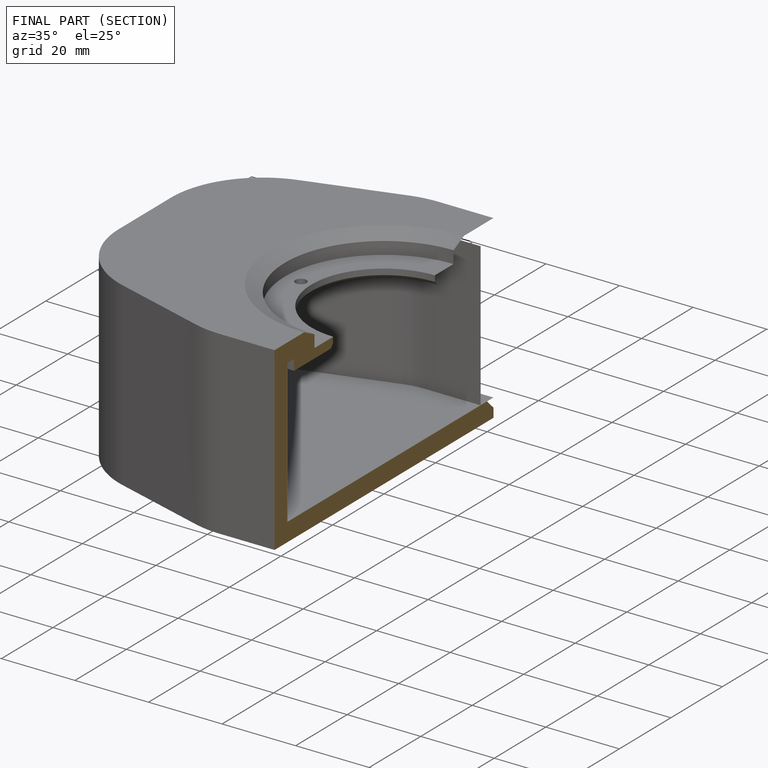
[diagram: finished part — half-section view (interior)]
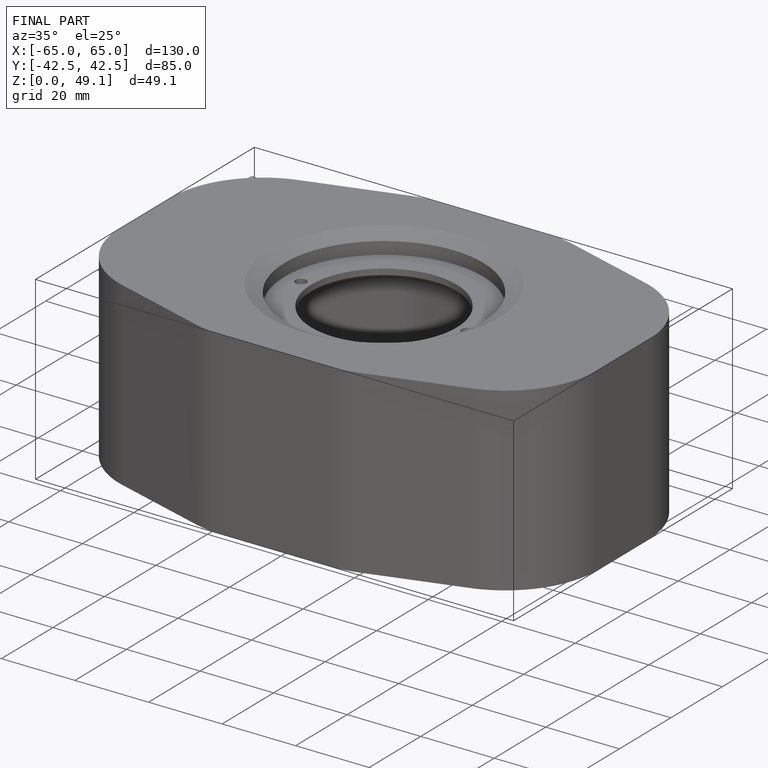
[diagram: finished part — iso view with bounding-box wireframe]
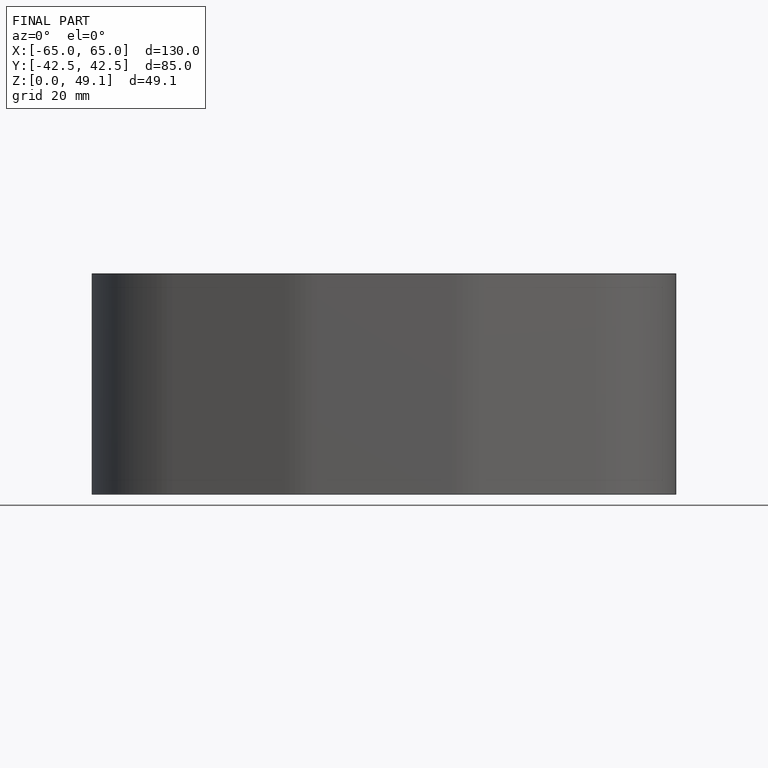
[diagram: finished part — front view with bounding-box wireframe]
